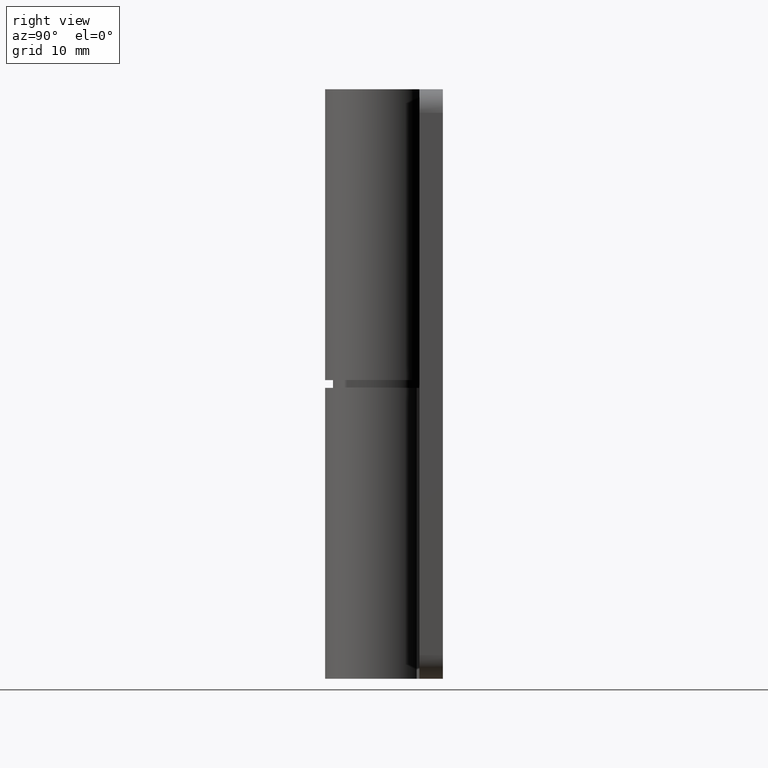
[diagram: clean part render]
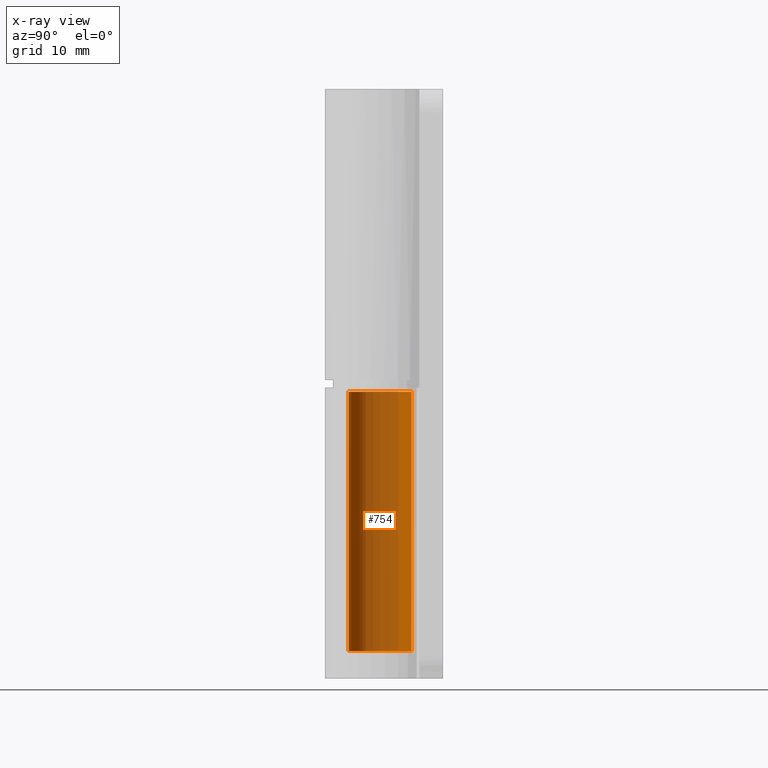
[diagram: x-ray — body ghosted, one internal face saturated and labeled with its STEP entity id]
A machine part, right view, then the same camera in x-ray: the body is ghosted and one INTERNAL B-rep face — a face not visible from any outside direction — is saturated and labeled: STEP entity #754.
In plain terms, the highlighted face is a freeform B-spline surface patch.
Its self-contained STEP definition (entity closure, byte-faithful):
#497=CARTESIAN_POINT('',(0.244194158855292,3.992539193967191,3.500000000082597));
#498=VERTEX_POINT('',#497);
#499=CARTESIAN_POINT('',(-4.000000000116716,0.0,3.500000000006175));
#500=VERTEX_POINT('',#499);
#501=CARTESIAN_POINT('',(0.244194158855292,3.992539193967190,3.500000000082597));
#502=CARTESIAN_POINT('',(0.122211053616515,4.000000000314198,3.500000000081499));
#503=CARTESIAN_POINT('',(1.268262E-010,4.000000000313033,3.500000000080331));
#504=CARTESIAN_POINT('',(-4.000000000114522,4.000000000274894,3.500000000042121));
#505=CARTESIAN_POINT('',(-4.000000000116716,0.0,3.500000000006175));
#513=(BOUNDED_CURVE()B_SPLINE_CURVE(2,(#501,#502,#503,#504,#505),.UNSPECIFIED.,.F.,.U.)B_SPLINE_CURVE_WITH_KNOTS((3,2,3),(0.239332962217148,0.250000000000000,0.500000000000000),.UNSPECIFIED.)CURVE()GEOMETRIC_REPRESENTATION_ITEM()RATIONAL_B_SPLINE_CURVE((0.976072041620008,0.987502787874303,1.0,0.707106781186547,1.0))REPRESENTATION_ITEM(''));
#514=EDGE_CURVE('',#498,#500,#513,.T.);
#530=CARTESIAN_POINT('',(-0.313836382815254,-3.987669335195178,3.500000000081882));
#531=VERTEX_POINT('',#530);
#545=CARTESIAN_POINT('',(-4.000000000116716,0.0,3.500000000006175));
#546=CARTESIAN_POINT('',(-4.000000000117016,-3.697561966859617,3.500000000043722));
#547=CARTESIAN_POINT('',(-0.313836382815254,-3.987669335195178,3.500000000081882));
#555=(BOUNDED_CURVE()B_SPLINE_CURVE(2,(#545,#546,#547),.UNSPECIFIED.,.F.,.U.)B_SPLINE_CURVE_WITH_KNOTS((3,3),(0.500000000000000,0.736331300632475),.UNSPECIFIED.)CURVE()GEOMETRIC_REPRESENTATION_ITEM()RATIONAL_B_SPLINE_CURVE((1.0,0.723120658605538,0.969723356171207))REPRESENTATION_ITEM(''));
#556=EDGE_CURVE('',#500,#531,#555,.T.);
#581=CARTESIAN_POINT('',(0.313836383059851,3.987669335195179,3.500000000081882));
#582=VERTEX_POINT('',#581);
#615=CARTESIAN_POINT('',(0.313836383059851,3.987669335195179,3.500000000081882));
#616=CARTESIAN_POINT('',(0.279036520264006,3.990408143820374,3.500000000082243));
#617=CARTESIAN_POINT('',(0.244194158855292,3.992539193967190,3.500000000082597));
#625=(BOUNDED_CURVE()B_SPLINE_CURVE(2,(#615,#616,#617),.UNSPECIFIED.,.F.,.U.)B_SPLINE_CURVE_WITH_KNOTS((3,3),(0.236331300632475,0.239332962217148),.UNSPECIFIED.)CURVE()GEOMETRIC_REPRESENTATION_ITEM()RATIONAL_B_SPLINE_CURVE((0.969723356171207,0.972855475539139,0.976072041620008))REPRESENTATION_ITEM(''));
#626=EDGE_CURVE('',#582,#498,#625,.T.);
#650=CARTESIAN_POINT('',(0.313836383199540,3.987669335120235,36.500000000006203));
#651=VERTEX_POINT('',#650);
#652=CARTESIAN_POINT('',(0.313836383199540,3.987669335120235,36.500000000006203));
#653=CARTESIAN_POINT('',(0.313836383059851,3.987669335195179,3.500000000081882));
#654=QUASI_UNIFORM_CURVE('',1,(#652,#653),.UNSPECIFIED.,.F.,.U.);
#655=EDGE_CURVE('',#651,#582,#654,.T.);
#672=CARTESIAN_POINT('',(-0.313836382954942,-3.987669335120234,36.500000000006203));
#673=VERTEX_POINT('',#672);
#689=CARTESIAN_POINT('',(-0.313836382954942,-3.987669335120234,36.500000000006203));
#690=CARTESIAN_POINT('',(-0.313836382815254,-3.987669335195178,3.500000000081882));
#691=QUASI_UNIFORM_CURVE('',1,(#689,#690),.UNSPECIFIED.,.F.,.U.);
#692=EDGE_CURVE('',#673,#531,#691,.T.);
#699=CARTESIAN_POINT('',(-0.313836382805804,-3.987669335144964,37.325000000006213));
#700=CARTESIAN_POINT('',(-4.301505717950768,-3.673832952216861,37.325000000006213));
#701=CARTESIAN_POINT('',(-3.987669335022665,0.313836382928103,37.325000000006213));
#702=CARTESIAN_POINT('',(-3.673832952094563,4.301505718073067,37.325000000006213));
#703=CARTESIAN_POINT('',(0.313836383050401,3.987669335144964,37.325000000006213));
#704=CARTESIAN_POINT('',(-0.313836382805804,-3.987669335144964,2.654375000006169));
#705=CARTESIAN_POINT('',(-4.301505717950768,-3.673832952216861,2.654375000006168));
#706=CARTESIAN_POINT('',(-3.987669335022665,0.313836382928103,2.654375000006169));
#707=CARTESIAN_POINT('',(-3.673832952094563,4.301505718073067,2.654375000006168));
#708=CARTESIAN_POINT('',(0.313836383050401,3.987669335144964,2.654375000006169));
#716=(BOUNDED_SURFACE()B_SPLINE_SURFACE(2,1,((#699,#704),(#700,#705),(#701,#706),(#702,#707),(#703,#708)),.UNSPECIFIED.,.F.,.F.,.U.)B_SPLINE_SURFACE_WITH_KNOTS((3,2,3),(2,2),(0.0,6.627416998322611,13.254833996645219),(0.0,34.670625000000037),.UNSPECIFIED.)GEOMETRIC_REPRESENTATION_ITEM()RATIONAL_B_SPLINE_SURFACE(((1.0,1.0),(0.707106781186548,0.707106781186548),(1.0,1.0),(0.707106781186548,0.707106781186548),(1.0,1.0)))REPRESENTATION_ITEM('')SURFACE());
#717=ORIENTED_EDGE('',*,*,#626,.T.);
#718=ORIENTED_EDGE('',*,*,#514,.T.);
#719=ORIENTED_EDGE('',*,*,#556,.T.);
#720=ORIENTED_EDGE('',*,*,#692,.F.);
#721=CARTESIAN_POINT('',(-4.000000000064906,0.0,36.500000000006203));
#722=VERTEX_POINT('',#721);
#723=CARTESIAN_POINT('',(-4.000000000064906,0.0,36.500000000006203));
#724=CARTESIAN_POINT('',(-4.000000000065414,-3.697561966672671,36.500000000006196));
#725=CARTESIAN_POINT('',(-0.313836382954942,-3.987669335120234,36.500000000006196));
#733=(BOUNDED_CURVE()B_SPLINE_CURVE(2,(#723,#724,#725),.UNSPECIFIED.,.F.,.U.)B_SPLINE_CURVE_WITH_KNOTS((3,3),(0.500000000000000,0.736331300626312),.UNSPECIFIED.)CURVE()GEOMETRIC_REPRESENTATION_ITEM()RATIONAL_B_SPLINE_CURVE((1.0,0.723120658612759,0.969723356158344))REPRESENTATION_ITEM(''));
#734=EDGE_CURVE('',#722,#673,#733,.T.);
#735=ORIENTED_EDGE('',*,*,#734,.F.);
#736=CARTESIAN_POINT('',(0.313836383199540,3.987669335120234,36.500000000006203));
#737=CARTESIAN_POINT('',(0.157160428236757,4.000000000199883,36.500000000006210));
#738=CARTESIAN_POINT('',(1.232767E-010,4.000000000199629,36.500000000006203));
#739=CARTESIAN_POINT('',(-4.000000000064437,4.000000000193174,36.500000000006203));
#740=CARTESIAN_POINT('',(-4.000000000064906,0.0,36.500000000006203));
#748=(BOUNDED_CURVE()B_SPLINE_CURVE(2,(#736,#737,#738,#739,#740),.UNSPECIFIED.,.F.,.U.)B_SPLINE_CURVE_WITH_KNOTS((3,2,3),(0.236331300626312,0.250000000000000,0.500000000000000),.UNSPECIFIED.)CURVE()GEOMETRIC_REPRESENTATION_ITEM()RATIONAL_B_SPLINE_CURVE((0.969723356158344,0.983986122573788,1.0,0.707106781186548,1.0))REPRESENTATION_ITEM(''));
#749=EDGE_CURVE('',#651,#722,#748,.T.);
#750=ORIENTED_EDGE('',*,*,#749,.F.);
#751=ORIENTED_EDGE('',*,*,#655,.T.);
#752=EDGE_LOOP('',(#717,#718,#719,#720,#735,#750,#751));
#753=FACE_OUTER_BOUND('',#752,.T.);
#754=ADVANCED_FACE('',(#753),#716,.T.);